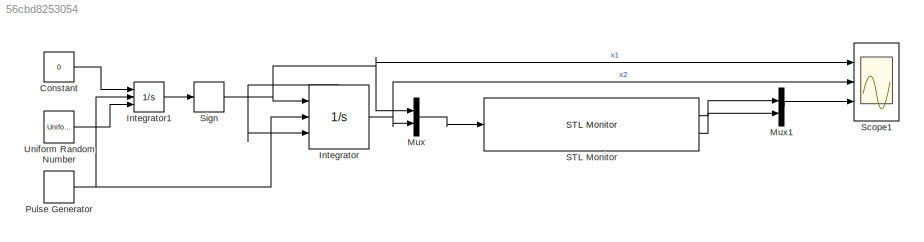
MODEL slx_56cbd8253054
KIND model
CONFIG AbsTol = auto
CONFIG FixedStep = 0.1
CONFIG MaxStep = auto
CONFIG MinStep = auto
CONFIG RelTol = 1e-6
CONFIG SampleTimeConstraint = Unconstrained
CONFIG Solver = ode3
CONFIG SolverMode = Auto
CONFIG SolverName = ode3
CONFIG StartTime = 0.0
CONFIG StopTime = 20
BLOCK [Constant] Constant
  Value = 0
BLOCK [Integrator] Integrator
  ExternalReset = rising
  InitialConditionSource = external
  Ports = [3, 1, 0, 0, 1]
  ShowStatePort = on
BLOCK [Integrator] Integrator1
  ExternalReset = rising
  InitialConditionSource = external
  Ports = [3, 1]
BLOCK [Mux] Mux
  DisplayOption = bar
  Inputs = 2
  Ports = [2, 1]
BLOCK [Mux] Mux1
  DisplayOption = bar
  Inputs = 2
  Ports = [2, 1]
BLOCK [DiscretePulseGenerator] Pulse Generator
  Period = 1
  Ports = [0, 1]
  PulseType = Time based
  PulseWidth = 50
BLOCK [Reference] STL Monitor  REF=lib/STL Monitor  (lib defined in slx_8e0b7e7613f0, slx_8fc754c0eda6, +7 more)
  MaxRob = 100
  Ports = [1, 2]
  RefreshRate = 0.1
  STLString = 'x1[t]>0'
  SignalNames = 'x1,x2'
  SourceBlock = lib/STL Monitor
  rob_diff_lim = -inf
  rob_low_lim = inf
  rob_up_lim = -inf
BLOCK [Scope] Scope1
  DataFormat = StructureWithTime
  Floating = off
  LimitDataPoints = off
  NumInputPorts = 3
  Ports = [3]
  SampleTime = 0
  SaveName = ScopeData1
  YMax = 0.44~5~-0.95
  YMin = 0.22~-5~-1.05
BLOCK [Signum] Sign
BLOCK [UniformRandomNumber] Uniform Random Number
  Maximum = 2
  Minimum = -2
LINE Constant:1 -> Integrator1:1
LINE Integrator1:1 -> Sign:1
NET Integrator:1 -> Mux:2, Scope1:2
LINE Integrator:state -> Integrator:3
LINE Mux1:1 -> Scope1:3
LINE Mux:1 -> STL Monitor:1
NET Pulse Generator:1 -> Integrator1:2, Integrator:2
LINE STL Monitor:1 -> Mux1:1
LINE STL Monitor:2 -> Mux1:2
NET Sign:1 -> Integrator:1, Mux:1, Scope1:1
LINE Uniform Random Number:1 -> Integrator1:3
note: NET lines group one-source signal fan-out (src -> all destinations, sorted); 1:1 wires keep LINE
